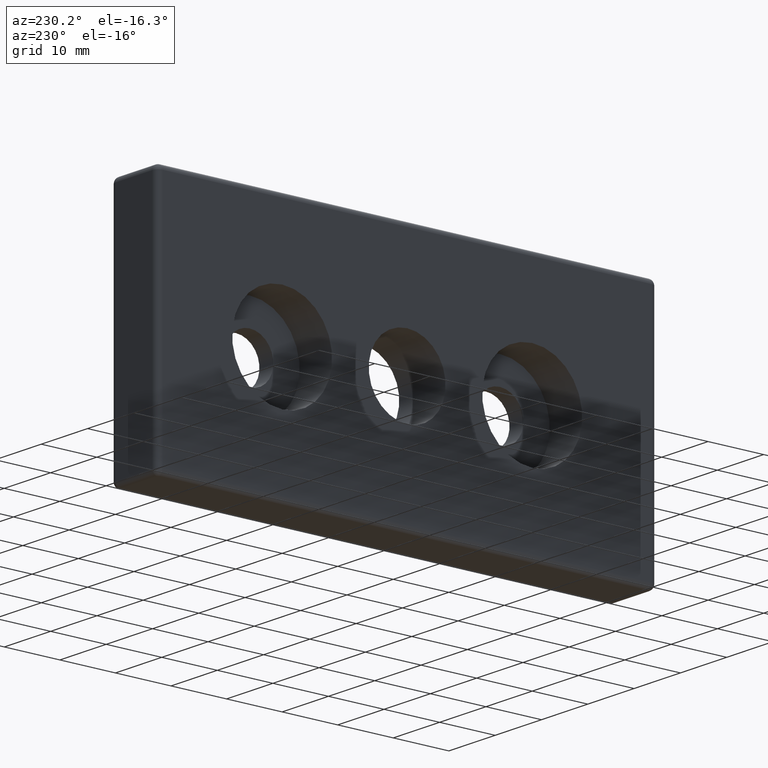
[diagram: clean part render]
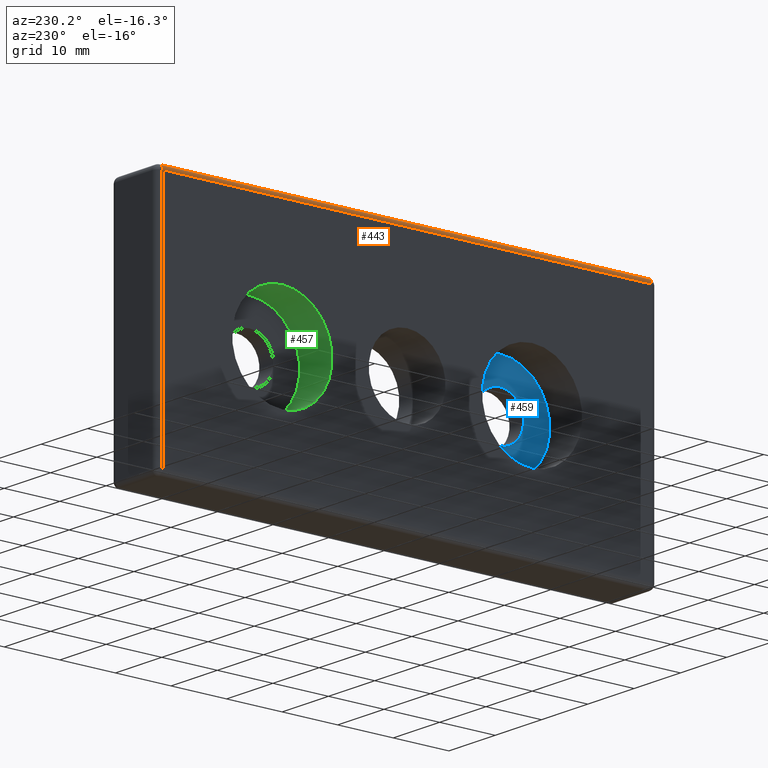
[diagram: same view with three faces highlighted in distinct colors, each labeled with its STEP entity id]
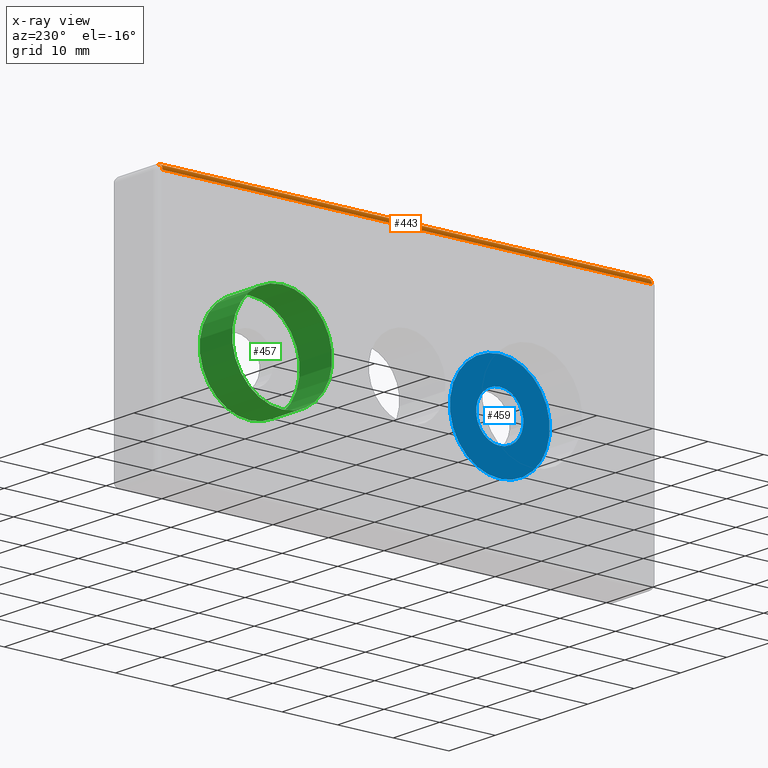
[diagram: x-ray of the same camera — body ghosted, the three highlighted faces saturated]
A machine part, auxiliary view with three faces highlighted in distinct colors.
The next image is the same camera in x-ray (body ghosted, the three faces saturated) — at least one of them is partly hidden behind the body in this view.
Their STEP definitions:

[orange] entity #443 — the highlighted cylindrical surface (edge-blend (fillet) strip) has radius 1 mm, axis along (0, 1, 0).
#46=LINE('',#765,#70);
#47=LINE('',#766,#71);
#70=VECTOR('',#620,88.);
#71=VECTOR('',#621,88.);
#89=CYLINDRICAL_SURFACE('',#502,1.);
#114=FACE_OUTER_BOUND('',#147,.T.);
#147=EDGE_LOOP('',(#350,#351,#352,#353));
#198=CIRCLE('',#492,1.);
#203=CIRCLE('',#500,1.);
#232=VERTEX_POINT('',#742);
#233=VERTEX_POINT('',#743);
#236=VERTEX_POINT('',#756);
#237=VERTEX_POINT('',#758);
#270=EDGE_CURVE('',#232,#233,#198,.F.);
#279=EDGE_CURVE('',#236,#237,#203,.F.);
#282=EDGE_CURVE('',#233,#236,#46,.T.);
#283=EDGE_CURVE('',#237,#232,#47,.T.);
#350=ORIENTED_EDGE('',*,*,#270,.T.);
#351=ORIENTED_EDGE('',*,*,#282,.T.);
#352=ORIENTED_EDGE('',*,*,#279,.T.);
#353=ORIENTED_EDGE('',*,*,#283,.T.);
#443=ADVANCED_FACE('',(#114),#89,.T.);
#492=AXIS2_PLACEMENT_3D('',#744,#592,#593);
#500=AXIS2_PLACEMENT_3D('',#760,#612,#613);
#502=AXIS2_PLACEMENT_3D('',#764,#618,#619);
#592=DIRECTION('center_axis',(0.,1.,0.));
#593=DIRECTION('ref_axis',(0.,0.,1.));
#612=DIRECTION('center_axis',(0.,-1.,0.));
#613=DIRECTION('ref_axis',(-1.,0.,0.));
#618=DIRECTION('center_axis',(0.,1.,0.));
#619=DIRECTION('ref_axis',(-0.707106781186546,0.,0.707106781186549));
#620=DIRECTION('',(0.,-1.,0.));
#621=DIRECTION('',(0.,1.,0.));
#742=CARTESIAN_POINT('',(-4.,44.,22.5));
#743=CARTESIAN_POINT('',(-5.,44.,21.5));
#744=CARTESIAN_POINT('Origin',(-4.,44.,21.5));
#756=CARTESIAN_POINT('',(-5.,-44.,21.5));
#758=CARTESIAN_POINT('',(-4.,-44.,22.5));
#760=CARTESIAN_POINT('Origin',(-4.,-44.,21.5));
#764=CARTESIAN_POINT('Origin',(-4.,22.5,21.5));
#765=CARTESIAN_POINT('',(-5.,22.5,21.5));
#766=CARTESIAN_POINT('',(-4.,22.5,22.5));

[blue] entity #459 — the highlighted planar face has unit normal (-1, 0, 0).
#24=FACE_BOUND('',#173,.T.);
#35=PLANE('',#526);
#130=FACE_OUTER_BOUND('',#172,.T.);
#172=EDGE_LOOP('',(#414));
#173=EDGE_LOOP('',(#415));
#212=CIRCLE('',#527,9.);
#213=CIRCLE('',#528,4.25);
#246=VERTEX_POINT('',#811);
#247=VERTEX_POINT('',#813);
#304=EDGE_CURVE('',#246,#246,#212,.T.);
#305=EDGE_CURVE('',#247,#247,#213,.T.);
#414=ORIENTED_EDGE('',*,*,#304,.T.);
#415=ORIENTED_EDGE('',*,*,#305,.F.);
#459=ADVANCED_FACE('',(#130,#24),#35,.T.);
#526=AXIS2_PLACEMENT_3D('',#810,#680,#681);
#527=AXIS2_PLACEMENT_3D('',#812,#682,#683);
#528=AXIS2_PLACEMENT_3D('',#814,#684,#685);
#680=DIRECTION('center_axis',(-1.,0.,0.));
#681=DIRECTION('ref_axis',(0.,0.,1.));
#682=DIRECTION('center_axis',(-1.,0.,0.));
#683=DIRECTION('ref_axis',(0.,0.,1.));
#684=DIRECTION('center_axis',(-1.,0.,0.));
#685=DIRECTION('ref_axis',(0.,0.,1.));
#810=CARTESIAN_POINT('Origin',(2.,-22.5,0.));
#811=CARTESIAN_POINT('',(2.,-22.5,9.));
#812=CARTESIAN_POINT('Origin',(2.,-22.5,0.));
#813=CARTESIAN_POINT('',(1.99999999999999,-22.5,-4.25));
#814=CARTESIAN_POINT('Origin',(1.99999999999999,-22.5,0.));

[green] entity #457 — the highlighted cylindrical surface (bore or boss wall) has radius 9 mm, axis along (-1, 0, 0).
#22=FACE_BOUND('',#169,.T.);
#96=CYLINDRICAL_SURFACE('',#524,9.);
#128=FACE_OUTER_BOUND('',#168,.T.);
#168=EDGE_LOOP('',(#410));
#169=EDGE_LOOP('',(#411));
#206=CIRCLE('',#514,9.);
#210=CIRCLE('',#522,9.);
#240=VERTEX_POINT('',#792);
#244=VERTEX_POINT('',#804);
#298=EDGE_CURVE('',#240,#240,#206,.T.);
#302=EDGE_CURVE('',#244,#244,#210,.T.);
#410=ORIENTED_EDGE('',*,*,#298,.F.);
#411=ORIENTED_EDGE('',*,*,#302,.F.);
#457=ADVANCED_FACE('',(#128,#22),#96,.F.);
#514=AXIS2_PLACEMENT_3D('',#793,#656,#657);
#522=AXIS2_PLACEMENT_3D('',#805,#672,#673);
#524=AXIS2_PLACEMENT_3D('',#808,#676,#677);
#656=DIRECTION('center_axis',(1.,0.,0.));
#657=DIRECTION('ref_axis',(0.,0.,1.));
#672=DIRECTION('center_axis',(-1.,0.,0.));
#673=DIRECTION('ref_axis',(0.,0.,1.));
#676=DIRECTION('center_axis',(-1.,0.,0.));
#677=DIRECTION('ref_axis',(0.,0.,1.));
#792=CARTESIAN_POINT('',(-5.,22.5,9.));
#793=CARTESIAN_POINT('Origin',(-5.,22.5,0.));
#804=CARTESIAN_POINT('',(2.,22.5,9.));
#805=CARTESIAN_POINT('Origin',(2.,22.5,0.));
#808=CARTESIAN_POINT('Origin',(-1.5,22.5,0.));